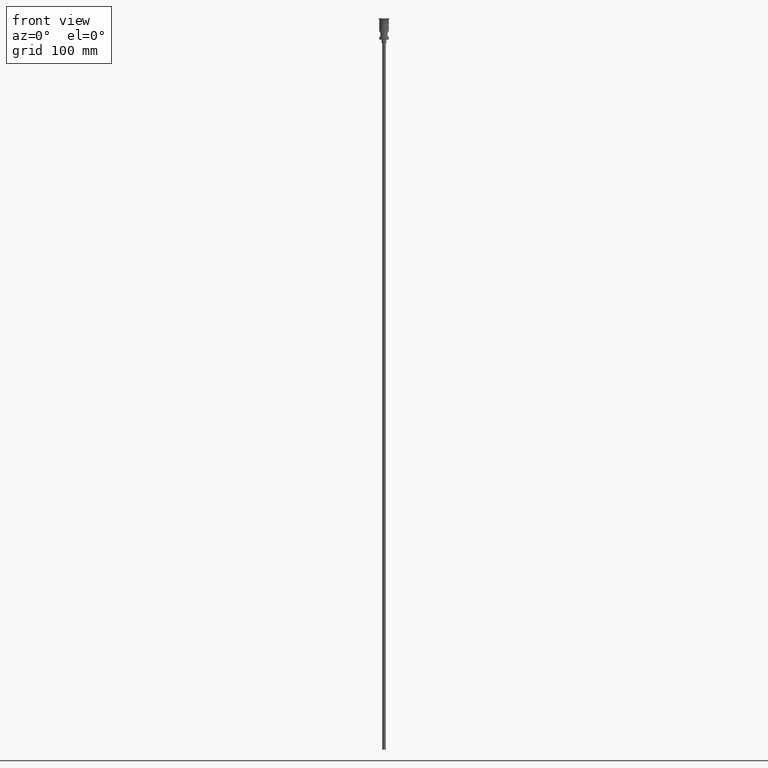
[diagram: clean part render]
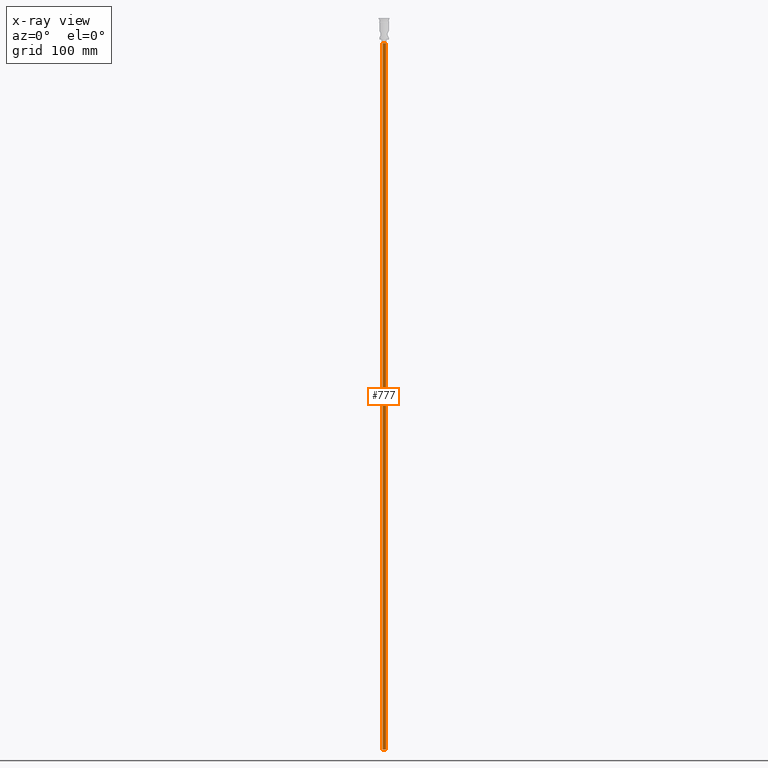
[diagram: x-ray — body ghosted, one internal face saturated and labeled with its STEP entity id]
A machine part, front view, then the same camera in x-ray: the body is ghosted and one INTERNAL B-rep face — a face not visible from any outside direction — is saturated and labeled: STEP entity #777.
In plain terms, the highlighted cylindrical surface (edge-blend (fillet) strip) has radius 1.5 mm, axis along (-0, -0, 1).
Its self-contained STEP definition (entity closure, byte-faithful):
#34 = CARTESIAN_POINT ( 'NONE',  ( 1.500000000000000222, 0.000000000000000000, -618.0000000000000000 ) ) ;
#166 = EDGE_CURVE ( 'NONE', #356, #898, #479, .T. ) ;
#236 = FACE_OUTER_BOUND ( 'NONE', #667, .T. ) ;
#259 = LINE ( 'NONE', #34, #867 ) ;
#271 = LINE ( 'NONE', #928, #472 ) ;
#326 = DIRECTION ( 'NONE',  ( 1.000000000000000000, 0.000000000000000000, 0.000000000000000000 ) ) ;
#341 = DIRECTION ( 'NONE',  ( -0.000000000000000000, -0.000000000000000000, 1.000000000000000000 ) ) ;
#356 = VERTEX_POINT ( 'NONE', #1087 ) ;
#371 = CIRCLE ( 'NONE', #1356, 1.500000000000000222 ) ;
#422 = ORIENTED_EDGE ( 'NONE', *, *, #906, .T. ) ;
#472 = VECTOR ( 'NONE', #1352, 1000.000000000000000 ) ;
#479 = CIRCLE ( 'NONE', #1272, 1.500000000000000222 ) ;
#496 = ORIENTED_EDGE ( 'NONE', *, *, #668, .T. ) ;
#501 = ORIENTED_EDGE ( 'NONE', *, *, #1420, .F. ) ;
#645 = CYLINDRICAL_SURFACE ( 'NONE', #1313, 1.500000000000000222 ) ;
#667 = EDGE_LOOP ( 'NONE', ( #974, #422, #496, #501 ) ) ;
#668 = EDGE_CURVE ( 'NONE', #1273, #1181, #371, .T. ) ;
#754 = CARTESIAN_POINT ( 'NONE',  ( 0.000000000000000000, 0.000000000000000000, -618.0000000000000000 ) ) ;
#777 = ADVANCED_FACE ( 'NONE', ( #236 ), #645, .T. ) ;
#867 = VECTOR ( 'NONE', #1037, 1000.000000000000000 ) ;
#868 = DIRECTION ( 'NONE',  ( 0.000000000000000000, 0.000000000000000000, -1.000000000000000000 ) ) ;
#882 = CARTESIAN_POINT ( 'NONE',  ( 1.500000000000000222, 0.000000000000000000, -20.99999999999999645 ) ) ;
#898 = VERTEX_POINT ( 'NONE', #1046 ) ;
#906 = EDGE_CURVE ( 'NONE', #356, #1273, #271, .T. ) ;
#915 = DIRECTION ( 'NONE',  ( -1.000000000000000000, 0.000000000000000000, 0.000000000000000000 ) ) ;
#928 = CARTESIAN_POINT ( 'NONE',  ( -1.500000000000000222, 1.836970198721030181E-16, -618.0000000000000000 ) ) ;
#974 = ORIENTED_EDGE ( 'NONE', *, *, #166, .F. ) ;
#1010 = DIRECTION ( 'NONE',  ( 0.000000000000000000, 0.000000000000000000, -1.000000000000000000 ) ) ;
#1037 = DIRECTION ( 'NONE',  ( -0.000000000000000000, -0.000000000000000000, 1.000000000000000000 ) ) ;
#1046 = CARTESIAN_POINT ( 'NONE',  ( 1.500000000000000222, 0.000000000000000000, -618.0000000000000000 ) ) ;
#1086 = CARTESIAN_POINT ( 'NONE',  ( 0.000000000000000000, 0.000000000000000000, -20.99999999999999645 ) ) ;
#1087 = CARTESIAN_POINT ( 'NONE',  ( -1.500000000000000222, 1.836970198721030181E-16, -618.0000000000000000 ) ) ;
#1181 = VERTEX_POINT ( 'NONE', #882 ) ;
#1206 = CARTESIAN_POINT ( 'NONE',  ( -1.500000000000000222, 1.836970198721030181E-16, -20.99999999999999645 ) ) ;
#1222 = CARTESIAN_POINT ( 'NONE',  ( 0.000000000000000000, 0.000000000000000000, -618.0000000000000000 ) ) ;
#1272 = AXIS2_PLACEMENT_3D ( 'NONE', #1222, #1010, #915 ) ;
#1273 = VERTEX_POINT ( 'NONE', #1206 ) ;
#1313 = AXIS2_PLACEMENT_3D ( 'NONE', #754, #341, #326 ) ;
#1352 = DIRECTION ( 'NONE',  ( -0.000000000000000000, -0.000000000000000000, 1.000000000000000000 ) ) ;
#1356 = AXIS2_PLACEMENT_3D ( 'NONE', #1086, #868, #1397 ) ;
#1397 = DIRECTION ( 'NONE',  ( -1.000000000000000000, 0.000000000000000000, 0.000000000000000000 ) ) ;
#1420 = EDGE_CURVE ( 'NONE', #898, #1181, #259, .T. ) ;